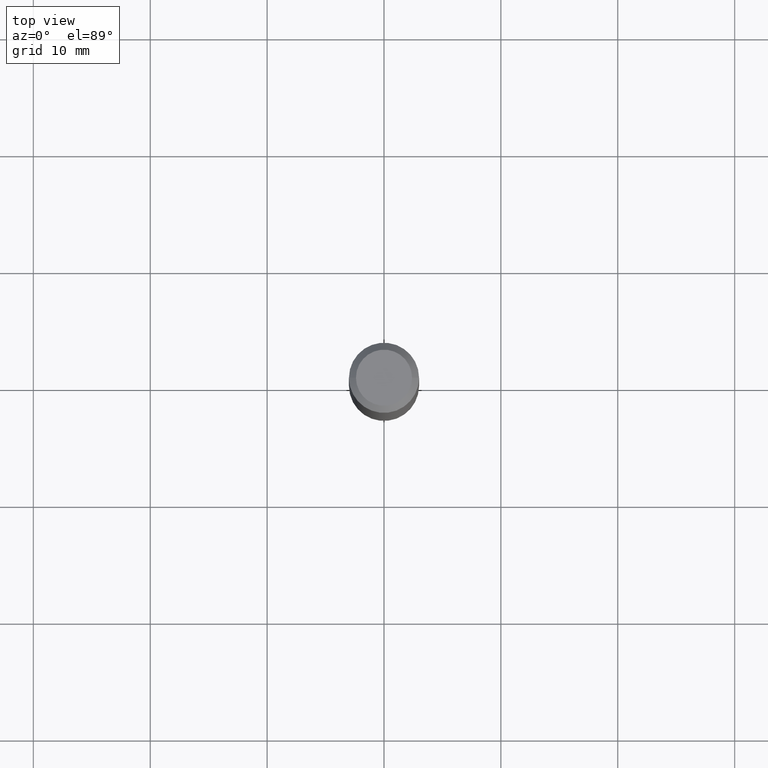
[diagram: clean part render]
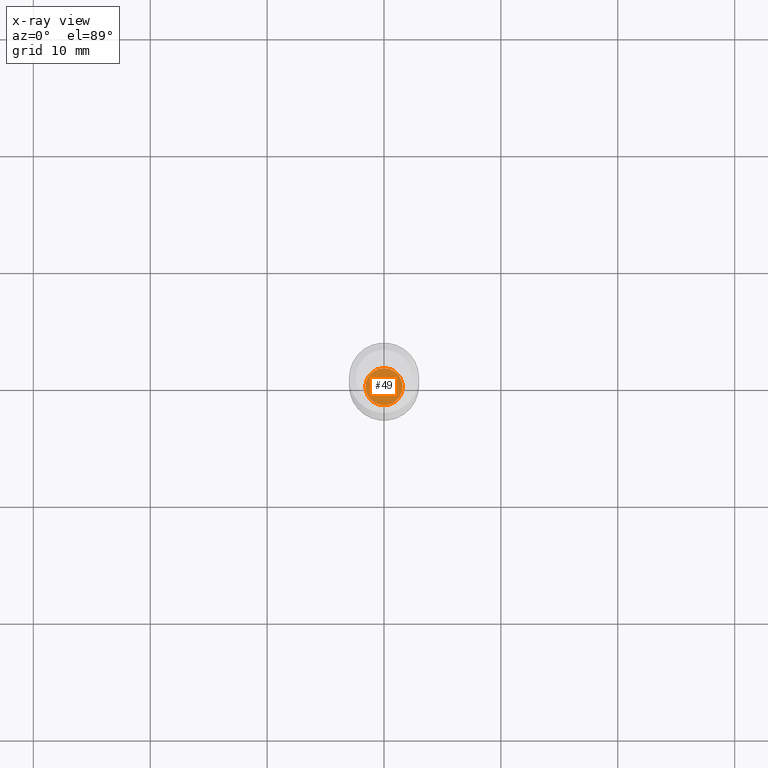
[diagram: x-ray — body ghosted, one internal face saturated and labeled with its STEP entity id]
A machine part, top view, then the same camera in x-ray: the body is ghosted and one INTERNAL B-rep face — a face not visible from any outside direction — is saturated and labeled: STEP entity #49.
In plain terms, the highlighted planar face has unit normal (-0, 0, 1).
Its self-contained STEP definition (entity closure, byte-faithful):
#31 = AXIS2_PLACEMENT_3D ( 'NONE', #62, #359, #317 ) ;
#33 = FACE_OUTER_BOUND ( 'NONE', #212, .T. ) ;
#49 = ADVANCED_FACE ( 'NONE', ( #33 ), #184, .F. ) ;
#62 = CARTESIAN_POINT ( 'NONE',  ( 4.351711740606449758E-29, -6.213091042471375748E-15, -1.779499999999999638 ) ) ;
#68 = CIRCLE ( 'NONE', #31, 0.06250000000000000000 ) ;
#73 = AXIS2_PLACEMENT_3D ( 'NONE', #246, #400, #134 ) ;
#79 = DIRECTION ( 'NONE',  ( -2.438088387897960049E-29, 3.491481338843145188E-15, 1.000000000000000000 ) ) ;
#84 = AXIS2_PLACEMENT_3D ( 'NONE', #336, #79, #485 ) ;
#134 = DIRECTION ( 'NONE',  ( 1.000000000000000000, -6.982962677686262766E-15, 0.000000000000000000 ) ) ;
#138 = ORIENTED_EDGE ( 'NONE', *, *, #434, .F. ) ;
#163 = VERTEX_POINT ( 'NONE', #200 ) ;
#184 = PLANE ( 'NONE',  #84 ) ;
#200 = CARTESIAN_POINT ( 'NONE',  ( -0.06250000000000000000, -5.766352605447202720E-15, -1.779499999999999638 ) ) ;
#212 = EDGE_LOOP ( 'NONE', ( #138, #372 ) ) ;
#215 = CARTESIAN_POINT ( 'NONE',  ( 0.06250000000000000000, -6.649526209826767418E-15, -1.779499999999999638 ) ) ;
#246 = CARTESIAN_POINT ( 'NONE',  ( 4.351711740606449758E-29, -6.213091042471375748E-15, -1.779499999999999638 ) ) ;
#317 = DIRECTION ( 'NONE',  ( 1.000000000000000000, -6.982962677686262766E-15, 0.000000000000000000 ) ) ;
#336 = CARTESIAN_POINT ( 'NONE',  ( 4.351711740606449758E-29, -6.213091042471375748E-15, -1.779499999999999638 ) ) ;
#359 = DIRECTION ( 'NONE',  ( -2.445468806185136597E-29, 3.491481338843145583E-15, 1.000000000000000000 ) ) ;
#372 = ORIENTED_EDGE ( 'NONE', *, *, #392, .F. ) ;
#387 = VERTEX_POINT ( 'NONE', #215 ) ;
#392 = EDGE_CURVE ( 'NONE', #163, #387, #68, .T. ) ;
#400 = DIRECTION ( 'NONE',  ( -2.445468806185136597E-29, 3.491481338843145583E-15, 1.000000000000000000 ) ) ;
#413 = CIRCLE ( 'NONE', #73, 0.06250000000000000000 ) ;
#434 = EDGE_CURVE ( 'NONE', #387, #163, #413, .T. ) ;
#485 = DIRECTION ( 'NONE',  ( 1.000000000000000000, -6.982962677686265922E-15, 4.876176775795935793E-29 ) ) ;